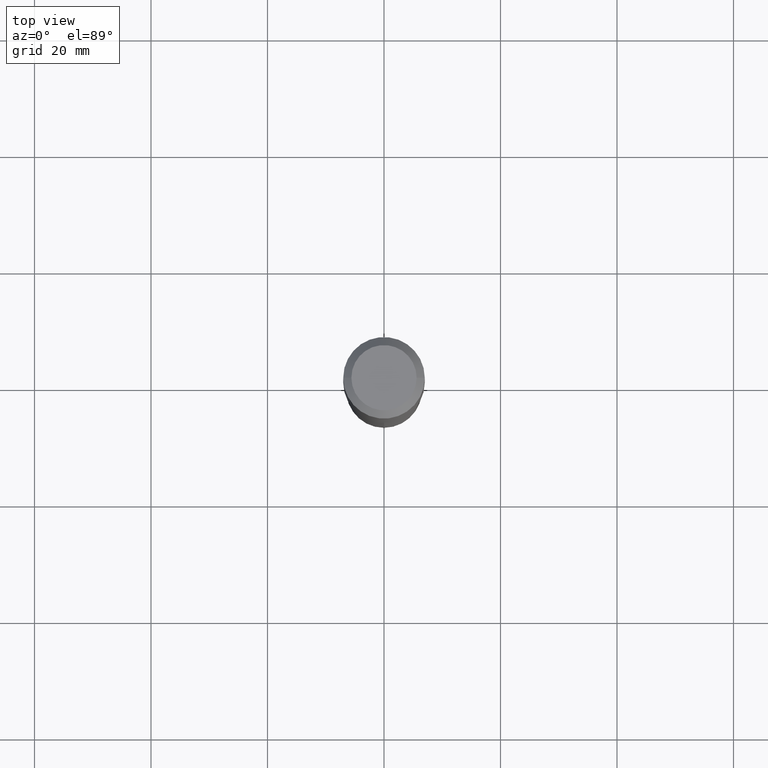
[diagram: clean part render]
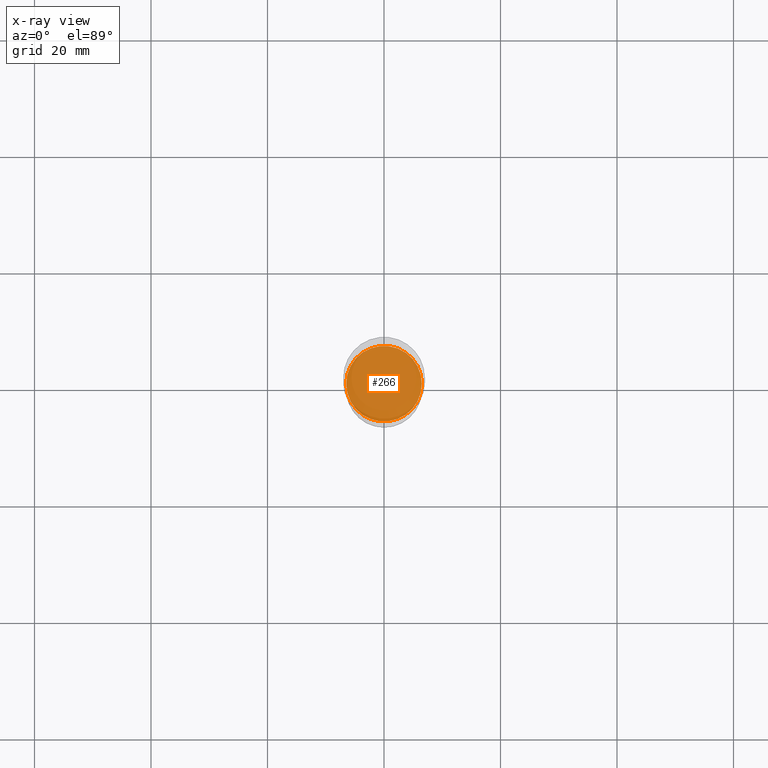
[diagram: x-ray — body ghosted, one internal face saturated and labeled with its STEP entity id]
A machine part, top view, then the same camera in x-ray: the body is ghosted and one INTERNAL B-rep face — a face not visible from any outside direction — is saturated and labeled: STEP entity #266.
In plain terms, the highlighted planar face has unit normal (-0, 0, 1).
Its self-contained STEP definition (entity closure, byte-faithful):
#2 = VERTEX_POINT ( 'NONE', #217 ) ;
#38 = DIRECTION ( 'NONE',  ( -2.445468806185136597E-29, 3.491481338843145583E-15, 1.000000000000000000 ) ) ;
#41 = DIRECTION ( 'NONE',  ( -2.438088387897960049E-29, 3.491481338843145188E-15, 1.000000000000000000 ) ) ;
#99 = CIRCLE ( 'NONE', #220, 0.2554000000000000159 ) ;
#192 = CARTESIAN_POINT ( 'NONE',  ( 5.776686413970529753E-29, -8.247577218615278049E-15, -2.362199999999999633 ) ) ;
#217 = CARTESIAN_POINT ( 'NONE',  ( -0.2554000000000000159, -6.430201844309871254E-15, -2.362199999999999633 ) ) ;
#218 = EDGE_CURVE ( 'NONE', #2, #365, #335, .T. ) ;
#220 = AXIS2_PLACEMENT_3D ( 'NONE', #457, #38, #265 ) ;
#222 = DIRECTION ( 'NONE',  ( -2.445468806185136597E-29, 3.491481338843145583E-15, 1.000000000000000000 ) ) ;
#229 = EDGE_CURVE ( 'NONE', #365, #2, #99, .T. ) ;
#265 = DIRECTION ( 'NONE',  ( 1.000000000000000000, -6.982962677686267499E-15, 0.000000000000000000 ) ) ;
#266 = ADVANCED_FACE ( 'NONE', ( #418 ), #304, .F. ) ;
#284 = ORIENTED_EDGE ( 'NONE', *, *, #218, .F. ) ;
#304 = PLANE ( 'NONE',  #469 ) ;
#308 = DIRECTION ( 'NONE',  ( 1.000000000000000000, -6.982962677686265922E-15, 4.876176775795935793E-29 ) ) ;
#318 = EDGE_LOOP ( 'NONE', ( #394, #284 ) ) ;
#335 = CIRCLE ( 'NONE', #343, 0.2554000000000000159 ) ;
#343 = AXIS2_PLACEMENT_3D ( 'NONE', #383, #222, #347 ) ;
#347 = DIRECTION ( 'NONE',  ( 1.000000000000000000, -6.982962677686267499E-15, 0.000000000000000000 ) ) ;
#365 = VERTEX_POINT ( 'NONE', #466 ) ;
#383 = CARTESIAN_POINT ( 'NONE',  ( 5.776686413970529753E-29, -8.247577218615278049E-15, -2.362199999999999633 ) ) ;
#394 = ORIENTED_EDGE ( 'NONE', *, *, #229, .F. ) ;
#418 = FACE_OUTER_BOUND ( 'NONE', #318, .T. ) ;
#457 = CARTESIAN_POINT ( 'NONE',  ( 5.776686413970529753E-29, -8.247577218615278049E-15, -2.362199999999999633 ) ) ;
#466 = CARTESIAN_POINT ( 'NONE',  ( 0.2554000000000000159, -1.003102588649635078E-14, -2.362199999999999633 ) ) ;
#469 = AXIS2_PLACEMENT_3D ( 'NONE', #192, #41, #308 ) ;